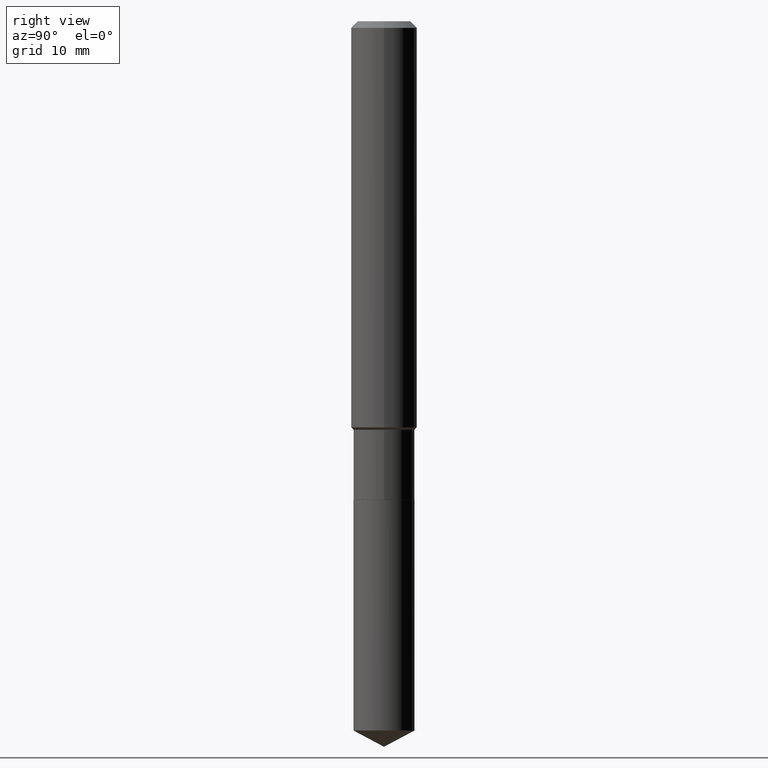
[diagram: clean part render]
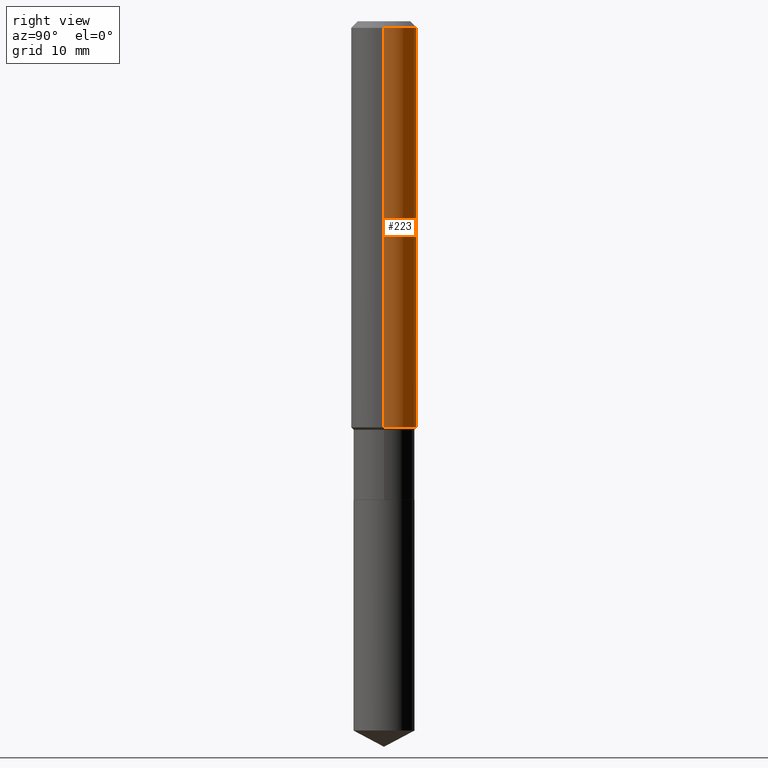
[diagram: same view with one face highlighted and labeled with its STEP entity id]
A machine part, right view. The second image highlights one B-rep face of the part: STEP entity #223.
In plain terms, the highlighted cylindrical surface (edge-blend (fillet) strip) has radius 2.9997 mm, axis along (-0, 0, 1).
Its self-contained STEP definition (entity closure, byte-faithful):
#31 = DIRECTION ( 'NONE',  ( 1.000000000000000000, -6.982962677686266711E-15, 4.876176775795936353E-29 ) ) ;
#38 = AXIS2_PLACEMENT_3D ( 'NONE', #484, #217, #331 ) ;
#48 = ORIENTED_EDGE ( 'NONE', *, *, #257, .F. ) ;
#72 = VERTEX_POINT ( 'NONE', #174 ) ;
#95 = FACE_OUTER_BOUND ( 'NONE', #228, .T. ) ;
#102 = ORIENTED_EDGE ( 'NONE', *, *, #103, .F. ) ;
#103 = EDGE_CURVE ( 'NONE', #461, #348, #352, .T. ) ;
#108 = VECTOR ( 'NONE', #239, 39.37007874015748143 ) ;
#158 = CARTESIAN_POINT ( 'NONE',  ( 0.1181000000000001632, -5.903047499582104093E-15, -1.454499999999999682 ) ) ;
#174 = CARTESIAN_POINT ( 'NONE',  ( -0.1181000000000001632, -4.239208636414675266E-15, -1.454499999999999682 ) ) ;
#181 = CARTESIAN_POINT ( 'NONE',  ( 5.776197320209326656E-31, -8.246878922347558061E-17, -0.02362000000000013741 ) ) ;
#217 = DIRECTION ( 'NONE',  ( -2.445468806185136597E-29, 3.491481338843145583E-15, 1.000000000000000000 ) ) ;
#223 = ADVANCED_FACE ( 'NONE', ( #95 ), #480, .T. ) ;
#228 = EDGE_LOOP ( 'NONE', ( #312, #273, #48, #102 ) ) ;
#231 = LINE ( 'NONE', #337, #108 ) ;
#239 = DIRECTION ( 'NONE',  ( -2.445468806185136877E-29, 3.491481338843145188E-15, 1.000000000000000000 ) ) ;
#257 = EDGE_CURVE ( 'NONE', #348, #332, #415, .T. ) ;
#259 = CARTESIAN_POINT ( 'NONE',  ( 0.000000000000000000, 0.000000000000000000, 0.000000000000000000 ) ) ;
#273 = ORIENTED_EDGE ( 'NONE', *, *, #468, .T. ) ;
#288 = DIRECTION ( 'NONE',  ( -2.445468806185136597E-29, 3.491481338843145583E-15, 1.000000000000000000 ) ) ;
#311 = EDGE_CURVE ( 'NONE', #461, #72, #369, .T. ) ;
#312 = ORIENTED_EDGE ( 'NONE', *, *, #311, .T. ) ;
#331 = DIRECTION ( 'NONE',  ( 1.000000000000000000, -6.982962677686263555E-15, 0.000000000000000000 ) ) ;
#332 = VERTEX_POINT ( 'NONE', #405 ) ;
#337 = CARTESIAN_POINT ( 'NONE',  ( -0.1181000000000000799, 8.391509709326788873E-16, -5.809262341591047988E-30 ) ) ;
#348 = VERTEX_POINT ( 'NONE', #487 ) ;
#352 = LINE ( 'NONE', #357, #463 ) ;
#357 = CARTESIAN_POINT ( 'NONE',  ( 0.1181000000000000799, -8.246878922347486570E-16, 5.758764772215004644E-30 ) ) ;
#369 = CIRCLE ( 'NONE', #38, 0.1181000000000001632 ) ;
#370 = DIRECTION ( 'NONE',  ( 1.000000000000000000, -6.982962677686266711E-15, 0.000000000000000000 ) ) ;
#392 = DIRECTION ( 'NONE',  ( -2.445468806185136877E-29, 3.491481338843145188E-15, 1.000000000000000000 ) ) ;
#405 = CARTESIAN_POINT ( 'NONE',  ( -0.1180999999999999966, -1.741263227352735474E-15, -0.02362000000000013741 ) ) ;
#409 = DIRECTION ( 'NONE',  ( -2.445468806185136597E-29, 3.491481338843145583E-15, 1.000000000000000000 ) ) ;
#415 = CIRCLE ( 'NONE', #464, 0.1180999999999999966 ) ;
#457 = AXIS2_PLACEMENT_3D ( 'NONE', #259, #409, #31 ) ;
#461 = VERTEX_POINT ( 'NONE', #158 ) ;
#463 = VECTOR ( 'NONE', #392, 39.37007874015748143 ) ;
#464 = AXIS2_PLACEMENT_3D ( 'NONE', #181, #288, #370 ) ;
#468 = EDGE_CURVE ( 'NONE', #72, #332, #231, .T. ) ;
#480 = CYLINDRICAL_SURFACE ( 'NONE', #457, 0.1181000000000000799 ) ;
#484 = CARTESIAN_POINT ( 'NONE',  ( 3.556934378596280140E-29, -5.078359607347354252E-15, -1.454499999999999682 ) ) ;
#487 = CARTESIAN_POINT ( 'NONE',  ( 0.1180999999999999966, -9.071566814582237199E-16, -0.02362000000000013741 ) ) ;